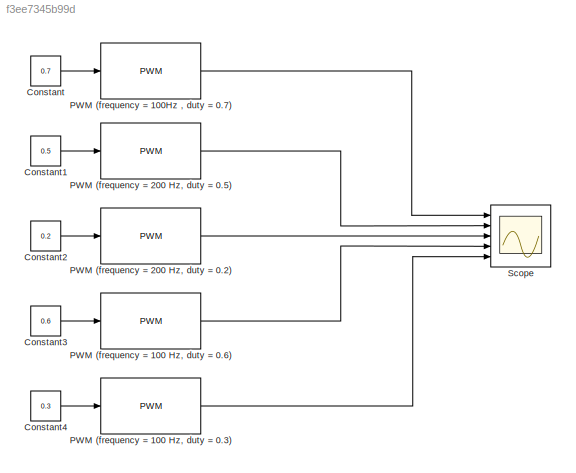
MODEL slx_f3ee7345b99d
KIND model
BLOCK [Constant] Constant
  Value = 0.7
BLOCK [Constant] Constant1
  Value = 0.5
BLOCK [Constant] Constant2
  Value = 0.2
BLOCK [Constant] Constant3
  Value = 0.6
BLOCK [Constant] Constant4
  Value = 0.3
BLOCK [Reference] PWM (frequency = 100 Hz, duty = 0.3)   REF=Tools/PWM
  Ports = [1, 1]
  SourceBlock = Tools/PWM
  f = 100
BLOCK [Reference] PWM (frequency = 100 Hz, duty = 0.6)   REF=Tools/PWM
  Ports = [1, 1]
  SourceBlock = Tools/PWM
  f = 100
BLOCK [Reference] PWM (frequency = 100Hz , duty = 0.7)   REF=Tools/PWM
  Ports = [1, 1]
  SourceBlock = Tools/PWM
  f = 100
BLOCK [Reference] PWM (frequency = 200 Hz, duty = 0.2)   REF=Tools/PWM
  Ports = [1, 1]
  SourceBlock = Tools/PWM
  f = 200
BLOCK [Reference] PWM (frequency = 200 Hz, duty = 0.5)   REF=Tools/PWM
  Ports = [1, 1]
  SourceBlock = Tools/PWM
  f = 100
BLOCK [Scope] Scope
  DataFormat = StructureWithTime
  Floating = off
  LimitDataPoints = off
  NumInputPorts = 5
  Ports = [5]
  SampleTime = 0
  SaveName = ScopeData1
  ShowLegends = off
  YMax = 5~5~5~5~5
  YMin = -5~-5~-5~-5~-5
LINE Constant1:1 -> PWM (frequency = 200 Hz, duty = 0.5) :1
LINE Constant2:1 -> PWM (frequency = 200 Hz, duty = 0.2) :1
LINE Constant3:1 -> PWM (frequency = 100 Hz, duty = 0.6) :1
LINE Constant4:1 -> PWM (frequency = 100 Hz, duty = 0.3) :1
LINE Constant:1 -> PWM (frequency = 100Hz , duty = 0.7) :1
LINE PWM (frequency = 100 Hz, duty = 0.3) :1 -> Scope:5
LINE PWM (frequency = 100 Hz, duty = 0.6) :1 -> Scope:4
LINE PWM (frequency = 100Hz , duty = 0.7) :1 -> Scope:1
LINE PWM (frequency = 200 Hz, duty = 0.2) :1 -> Scope:3
LINE PWM (frequency = 200 Hz, duty = 0.5) :1 -> Scope:2
